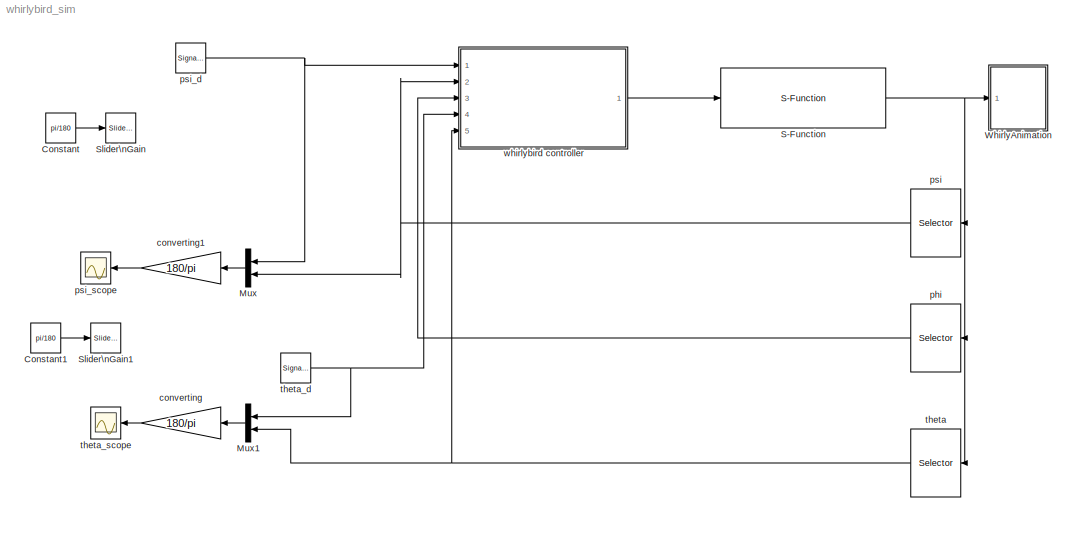
MODEL whirlybird_sim
KIND model
BLOCK [Constant] Constant
  SID = 105
  Value = pi/180
BLOCK [Constant] Constant1
  SID = 106
  Value = pi/180
BLOCK [Mux] Mux
  DisplayOption = bar
  Inputs = 2
  Ports = [2, 1]
  SID = 66
BLOCK [Mux] Mux1
  DisplayOption = bar
  Inputs = 2
  Ports = [2, 1]
  SID = 67
BLOCK [S-Function] S-Function
  EnableBusSupport = off
  FunctionName = whirlybird_dynamics
  Parameters = P
  Ports = [1, 1]
  SID = 4
BLOCK [Reference] Slider\nGain  REF=simulink/Math\nOperations/Slider\nGain
  Ports = [1, 1]
  SID = 103
  SourceBlock = simulink/Math\nOperations/Slider\nGain
  SourceType = Slider Gain
  gain = 184.6001
  high = 360
  low = 0
BLOCK [Reference] Slider\nGain1  REF=simulink/Math\nOperations/Slider\nGain
  Ports = [1, 1]
  SID = 104
  SourceBlock = simulink/Math\nOperations/Slider\nGain
  SourceType = Slider Gain
  gain = -17.6
  high = 30
  low = -30
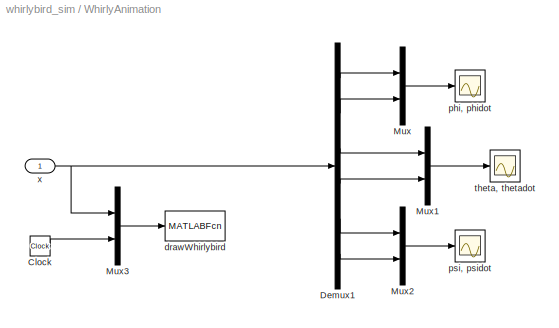
BLOCK [SubSystem] WhirlyAnimation
  FunctionWithSeparateData = off
  MaskHideContents = off
  MinAlgLoopOccurrences = off
  Opaque = off
  Ports = [1]
  PropExecContextOutsideSubsystem = off
  RTWSystemCode = Auto
  RequestExecContextInheritance = off
  SID = 15
BLOCK [Clock] WhirlyAnimation/Clock
  Decimation = 1
  SID = 17
BLOCK [Demux] WhirlyAnimation/Demux1
  DisplayOption = bar
  Outputs = 6
  Ports = [1, 6]
  SID = 33
BLOCK [Mux] WhirlyAnimation/Mux
  DisplayOption = bar
  Inputs = 2
  Ports = [2, 1]
  SID = 21
BLOCK [Mux] WhirlyAnimation/Mux1
  DisplayOption = bar
  Inputs = 2
  Ports = [2, 1]
  SID = 34
BLOCK [Mux] WhirlyAnimation/Mux2
  DisplayOption = bar
  Inputs = 2
  Ports = [2, 1]
  SID = 35
BLOCK [Mux] WhirlyAnimation/Mux3
  DisplayOption = bar
  Inputs = 2
  Ports = [2, 1]
  SID = 37
BLOCK [MATLABFcn] WhirlyAnimation/drawWhirlybird
  MATLABFcn = drawWhirlybird(u, P)
  OutputDimensions = 0
  Ports = [1]
  SID = 22
  SampleTime = 0.1
BLOCK [Scope] WhirlyAnimation/phi, phidot
  DataFormat = StructureWithTime
  Floating = off
  NumInputPorts = 1
  Ports = [1]
  SID = 1
  SampleTime = 0
  SaveName = ScopeData4
  ShowLegends = off
  TimeRange = 40
  YMax = 15
  YMin = -10
  ZoomMode = xonly
BLOCK [Scope] WhirlyAnimation/psi, psidot
  DataFormat = StructureWithTime
  Floating = off
  NumInputPorts = 1
  Ports = [1]
  SID = 24
  SampleTime = 0
  SaveName = ScopeData3
  ShowLegends = off
  TimeRange = 40
  YMax = 1
  YMin = -2
BLOCK [Scope] WhirlyAnimation/theta, thetadot
  DataFormat = StructureWithTime
  Floating = off
  NumInputPorts = 1
  Ports = [1]
  SID = 23
  SampleTime = 0
  SaveName = ScopeData2
  ShowLegends = off
  TimeRange = 40
  YMax = 1
  YMin = -2
BLOCK [Inport] WhirlyAnimation/x
  IconDisplay = Port number
  SID = 36
BLOCK [Gain] converting
  Gain = 180/pi
  Multiplication = Matrix(K*u)
  OutDataTypeStr = Inherit: Inherit via internal rule
  ParamDataTypeStr = Inherit: Inherit via internal rule
  SID = 74
  SaturateOnIntegerOverflow = off
BLOCK [Gain] converting1
  Gain = 180/pi
  Multiplication = Matrix(K*u)
  OutDataTypeStr = Inherit: Inherit via internal rule
  ParamDataTypeStr = Inherit: Inherit via internal rule
  SID = 81
  SaturateOnIntegerOverflow = off
BLOCK [Selector] phi
  IndexOptions = Index vector (dialog)
  Indices = [1]
  InputPortWidth = 6
  OutputSizes = 1
  Ports = [1, 1]
  SID = 45
BLOCK [Selector] psi
  IndexOptions = Index vector (dialog)
  Indices = [5]
  InputPortWidth = 6
  OutputSizes = 1
  Ports = [1, 1]
  SID = 99
BLOCK [SignalGenerator] psi_d
  Amplitude = 60*pi/180
  Frequency = 0.1
  Ports = [0, 1]
  SID = 107
  Units = rad/sec
  WaveForm = square
BLOCK [Scope] psi_scope
  Floating = off
  NumInputPorts = 1
  Ports = [1]
  SID = 80
  SaveName = ScopeData1
  ShowLegends = off
  YMax = 80
  YMin = -90
BLOCK [Selector] theta
  IndexOptions = Index vector (dialog)
  Indices = [3]
  InputPortWidth = 6
  OutputSizes = 1
  Ports = [1, 1]
  SID = 47
BLOCK [SignalGenerator] theta_d
  Amplitude = 15*pi/180
  Frequency = 0.1
  Ports = [0, 1]
  SID = 108
  Units = rad/sec
  WaveForm = square
BLOCK [Scope] theta_scope
  Floating = off
  NumInputPorts = 1
  Ports = [1]
  SID = 64
  ShowLegends = off
  YMax = 25
  YMin = -25
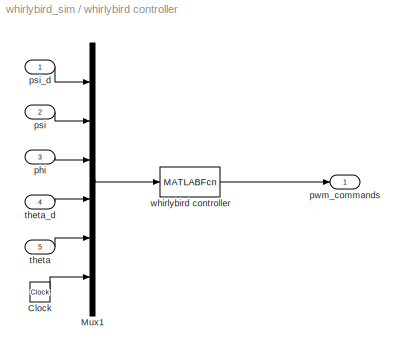
BLOCK [SubSystem] whirlybird controller
  FunctionWithSeparateData = off
  MaskHideContents = off
  MinAlgLoopOccurrences = off
  Opaque = off
  Ports = [5, 1]
  PropExecContextOutsideSubsystem = off
  RTWSystemCode = Auto
  RequestExecContextInheritance = off
  SID = 85
BLOCK [Clock] whirlybird controller/Clock
  SID = 88
BLOCK [Mux] whirlybird controller/Mux1
  DisplayOption = bar
  Inputs = 6
  Ports = [6, 1]
  SID = 89
BLOCK [Inport] whirlybird controller/phi
  IconDisplay = Port number
  Port = 3
  SID = 100
BLOCK [Inport] whirlybird controller/psi
  IconDisplay = Port number
  Port = 2
  SID = 87
BLOCK [Inport] whirlybird controller/psi_d
  IconDisplay = Port number
  SID = 86
BLOCK [Outport] whirlybird controller/pwm_commands
  IconDisplay = Port number
  SID = 91
BLOCK [Inport] whirlybird controller/theta
  IconDisplay = Port number
  Port = 5
  SID = 102
BLOCK [Inport] whirlybird controller/theta_d
  IconDisplay = Port number
  Port = 4
  SID = 101
BLOCK [MATLABFcn] whirlybird controller/whirlybird controller
  MATLABFcn = whirlybird_controller(u,P)
  OutputDimensions = 2
  Ports = [1, 1]
  SID = 90
  SampleTime = P.Ts
LINE Constant1:1 -> Slider\nGain1:1
LINE Constant:1 -> Slider\nGain:1
LINE Mux1:1 -> converting:1
LINE Mux:1 -> converting1:1
NET S-Function:1 -> WhirlyAnimation:1, phi:1, psi:1, theta:1
LINE WhirlyAnimation/Clock:1 -> WhirlyAnimation/Mux3:2
LINE WhirlyAnimation/Demux1:1 -> WhirlyAnimation/Mux:1
LINE WhirlyAnimation/Demux1:2 -> WhirlyAnimation/Mux:2
LINE WhirlyAnimation/Demux1:3 -> WhirlyAnimation/Mux1:1
LINE WhirlyAnimation/Demux1:4 -> WhirlyAnimation/Mux1:2
LINE WhirlyAnimation/Demux1:5 -> WhirlyAnimation/Mux2:1
LINE WhirlyAnimation/Demux1:6 -> WhirlyAnimation/Mux2:2
LINE WhirlyAnimation/Mux1:1 -> WhirlyAnimation/theta, thetadot:1
LINE WhirlyAnimation/Mux2:1 -> WhirlyAnimation/psi, psidot:1
LINE WhirlyAnimation/Mux3:1 -> WhirlyAnimation/drawWhirlybird:1
LINE WhirlyAnimation/Mux:1 -> WhirlyAnimation/phi, phidot:1
NET WhirlyAnimation/x:1 -> WhirlyAnimation/Demux1:1, WhirlyAnimation/Mux3:1
LINE converting1:1 -> psi_scope:1
LINE converting:1 -> theta_scope:1
LINE phi:1 -> whirlybird controller:3
NET psi:1 -> Mux:2, whirlybird controller:2
NET psi_d:1 -> Mux:1, whirlybird controller:1
NET theta:1 -> Mux1:2, whirlybird controller:5
NET theta_d:1 -> Mux1:1, whirlybird controller:4
LINE whirlybird controller/Clock:1 -> whirlybird controller/Mux1:6
LINE whirlybird controller/Mux1:1 -> whirlybird controller/whirlybird controller:1
LINE whirlybird controller/phi:1 -> whirlybird controller/Mux1:3
LINE whirlybird controller/psi:1 -> whirlybird controller/Mux1:2
LINE whirlybird controller/psi_d:1 -> whirlybird controller/Mux1:1
LINE whirlybird controller/theta:1 -> whirlybird controller/Mux1:5
LINE whirlybird controller/theta_d:1 -> whirlybird controller/Mux1:4
LINE whirlybird controller/whirlybird controller:1 -> whirlybird controller/pwm_commands:1
LINE whirlybird controller:1 -> S-Function:1
note: NET lines group one-source signal fan-out (src -> all destinations, sorted); 1:1 wires keep LINE
